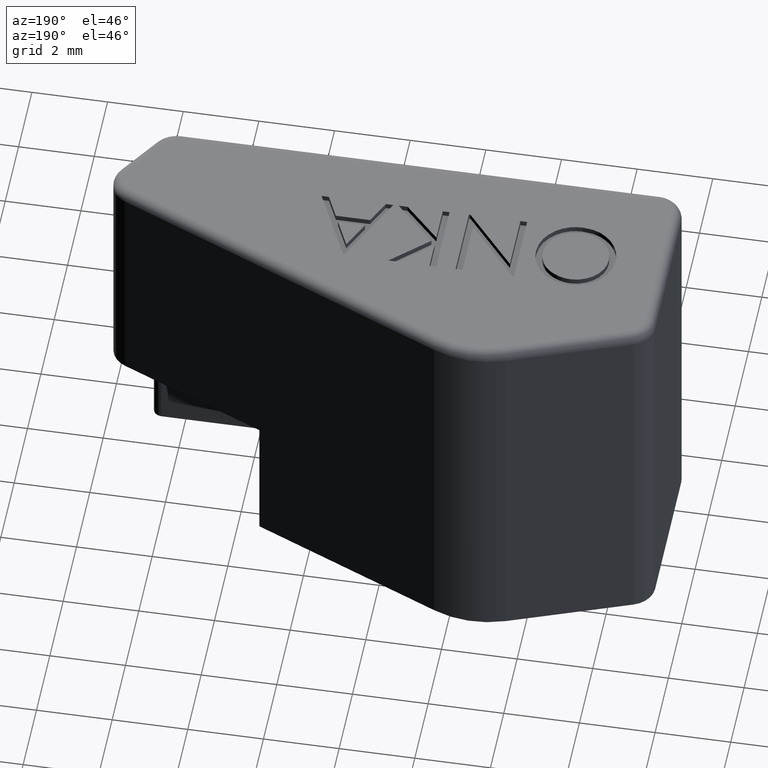
[diagram: clean part render]
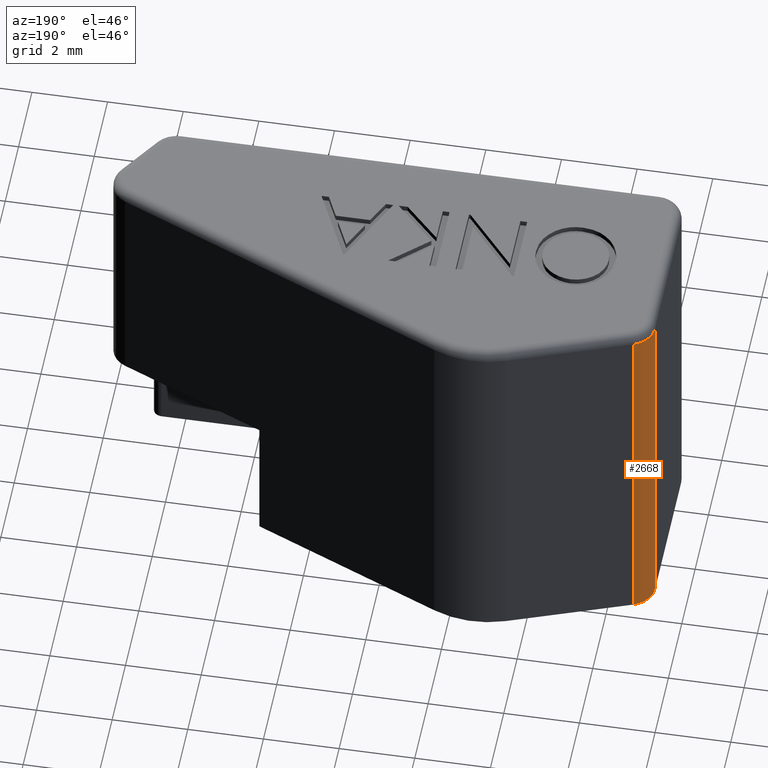
[diagram: same view with one face highlighted and labeled with its STEP entity id]
A machine part, auxiliary view. The second image highlights one B-rep face of the part: STEP entity #2668.
In plain terms, the highlighted cylindrical surface (edge-blend (fillet) strip) has radius 0.7 mm, axis along (0, 0, 1).
Its self-contained STEP definition (entity closure, byte-faithful):
#114 = DIRECTION ( 'NONE',  ( 1.000000000000000000, 0.0000000000000000000, 0.0000000000000000000 ) ) ;
#129 = DIRECTION ( 'NONE',  ( -0.0000000000000000000, -0.0000000000000000000, -1.000000000000000000 ) ) ;
#132 = CARTESIAN_POINT ( 'NONE',  ( 216.8528882970909700, 147.1535895346392000, 34.50000000000000000 ) ) ;
#133 = DIRECTION ( 'NONE',  ( 0.0000000000000000000, 0.0000000000000000000, 1.000000000000000000 ) ) ;
#135 = CARTESIAN_POINT ( 'NONE',  ( 217.5528882970909900, 147.1535895346392000, 40.64999999999999900 ) ) ;
#152 = LINE ( 'NONE', #132, #2145 ) ;
#260 = DIRECTION ( 'NONE',  ( 0.0000000000000000000, 0.0000000000000000000, 1.000000000000000000 ) ) ;
#273 = DIRECTION ( 'NONE',  ( 0.0000000000000000000, 0.0000000000000000000, -1.000000000000000000 ) ) ;
#287 = LINE ( 'NONE', #289, #2204 ) ;
#288 = CARTESIAN_POINT ( 'NONE',  ( 217.5528882970909900, 147.1535895346392000, 30.90000000000000200 ) ) ;
#289 = CARTESIAN_POINT ( 'NONE',  ( 217.3114746898324900, 147.8106431627630000, 34.50000000000000000 ) ) ;
#300 = DIRECTION ( 'NONE',  ( -1.000000000000000000, 0.0000000000000000000, 0.0000000000000000000 ) ) ;
#975 = FACE_OUTER_BOUND ( 'NONE', #1806, .T. ) ;
#978 = CARTESIAN_POINT ( 'NONE',  ( 217.5528882970909900, 147.1535895346392000, 34.50000000000000000 ) ) ;
#1000 = DIRECTION ( 'NONE',  ( 0.0000000000000000000, 0.0000000000000000000, 1.000000000000000000 ) ) ;
#1003 = DIRECTION ( 'NONE',  ( 1.000000000000000000, 0.0000000000000000000, 0.0000000000000000000 ) ) ;
#1004 = CYLINDRICAL_SURFACE ( 'NONE', #2327, 0.7000000000000061700 ) ;
#1177 = ORIENTED_EDGE ( 'NONE', *, *, #2481, .T. ) ;
#1189 = ORIENTED_EDGE ( 'NONE', *, *, #2484, .T. ) ;
#1474 = CARTESIAN_POINT ( 'NONE',  ( 216.8528882970909700, 147.1535895346392000, 30.90000000000000200 ) ) ;
#1489 = CARTESIAN_POINT ( 'NONE',  ( 216.8528882970909700, 147.1535895346392000, 40.64999999999999900 ) ) ;
#1504 = CARTESIAN_POINT ( 'NONE',  ( 217.3114746898324900, 147.8106431627630000, 40.64999999999999900 ) ) ;
#1505 = CARTESIAN_POINT ( 'NONE',  ( 217.3114746898324900, 147.8106431627630000, 30.90000000000000200 ) ) ;
#1806 = EDGE_LOOP ( 'NONE', ( #1189, #1177, #2060, #2022 ) ) ;
#1891 = VERTEX_POINT ( 'NONE', #1504 ) ;
#1897 = VERTEX_POINT ( 'NONE', #1489 ) ;
#1901 = VERTEX_POINT ( 'NONE', #1474 ) ;
#1911 = VERTEX_POINT ( 'NONE', #1505 ) ;
#2022 = ORIENTED_EDGE ( 'NONE', *, *, #2520, .F. ) ;
#2060 = ORIENTED_EDGE ( 'NONE', *, *, #2530, .F. ) ;
#2133 = AXIS2_PLACEMENT_3D ( 'NONE', #135, #129, #114 ) ;
#2136 = CIRCLE ( 'NONE', #2133, 0.7000000000000061700 ) ;
#2145 = VECTOR ( 'NONE', #133, 1000.000000000000000 ) ;
#2204 = VECTOR ( 'NONE', #260, 1000.000000000000000 ) ;
#2240 = AXIS2_PLACEMENT_3D ( 'NONE', #288, #273, #300 ) ;
#2241 = CIRCLE ( 'NONE', #2240, 0.7000000000000061700 ) ;
#2327 = AXIS2_PLACEMENT_3D ( 'NONE', #978, #1000, #1003 ) ;
#2481 = EDGE_CURVE ( 'NONE', #1897, #1891, #2136, .T. ) ;
#2484 = EDGE_CURVE ( 'NONE', #1901, #1897, #152, .T. ) ;
#2520 = EDGE_CURVE ( 'NONE', #1901, #1911, #2241, .T. ) ;
#2530 = EDGE_CURVE ( 'NONE', #1911, #1891, #287, .T. ) ;
#2668 = ADVANCED_FACE ( 'NONE', ( #975 ), #1004, .T. ) ;